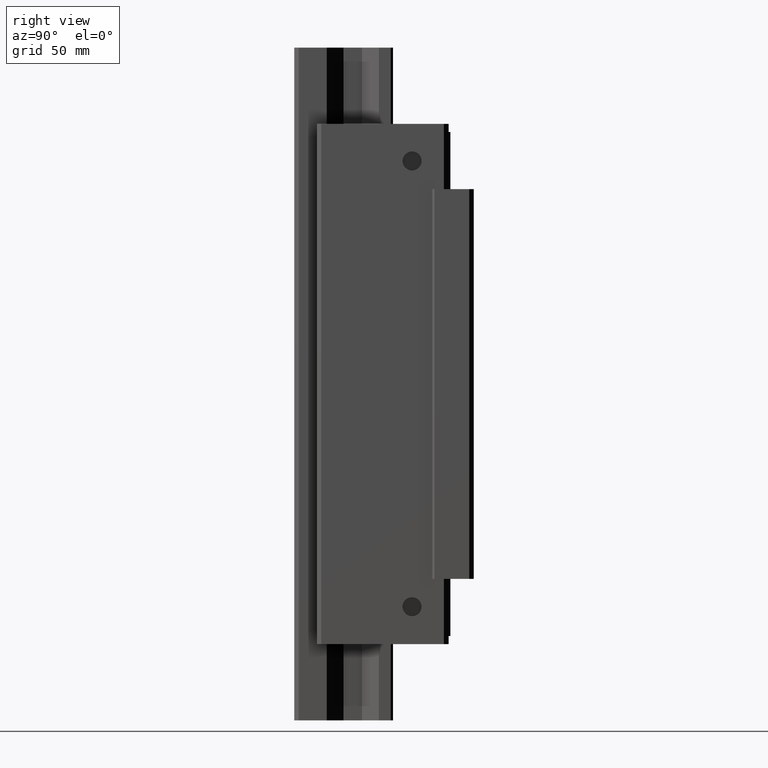
[diagram: clean part render]
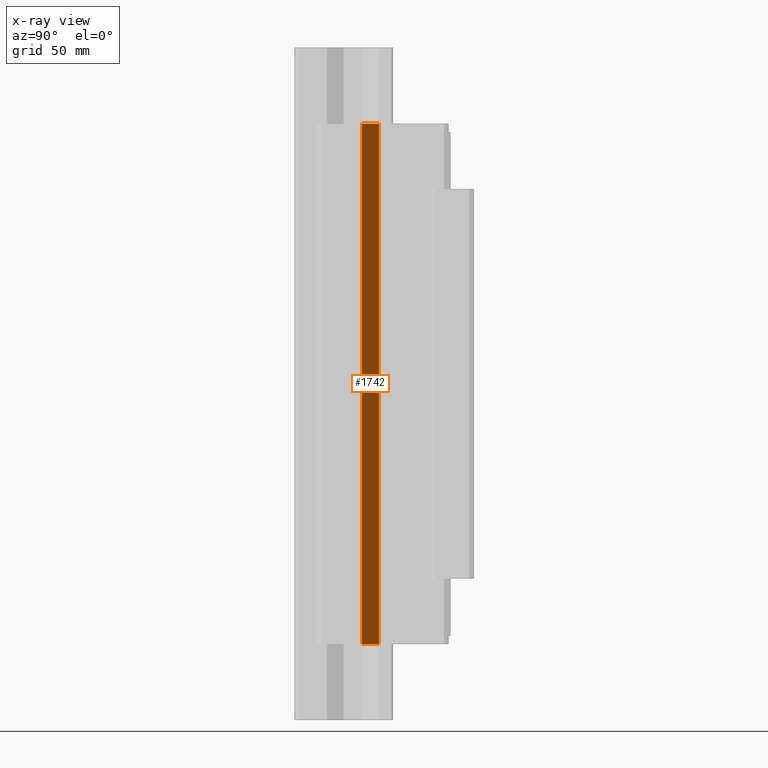
[diagram: x-ray — body ghosted, one internal face saturated and labeled with its STEP entity id]
A machine part, right view, then the same camera in x-ray: the body is ghosted and one INTERNAL B-rep face — a face not visible from any outside direction — is saturated and labeled: STEP entity #1742.
In plain terms, the highlighted planar face has unit normal (0.7071, 0.7071, 0).
Its self-contained STEP definition (entity closure, byte-faithful):
#5=DIRECTION('',(1.119411077243E-14,-2.725788943218E-14,-1.E0));
#6=VECTOR('',#5,2.32E2);
#7=CARTESIAN_POINT('',(-1.900000707402E1,-3.979679733303E1,1.16E2));
#8=LINE('',#7,#6);
#17=DIRECTION('',(0.E0,-1.892738839223E-14,-1.E0));
#18=VECTOR('',#17,2.32E2);
#19=CARTESIAN_POINT('',(-2.650000707401E1,-3.229679732943E1,1.16E2));
#20=LINE('',#19,#18);
#453=DIRECTION('',(7.071067810168E-1,-7.071067813563E-1,0.E0));
#454=VECTOR('',#453,1.060660172034E1);
#455=CARTESIAN_POINT('',(-2.650000707401E1,-3.229679732943E1,1.16E2));
#456=LINE('',#455,#454);
#511=DIRECTION('',(-7.071067810169E-1,7.071067813562E-1,0.E0));
#512=VECTOR('',#511,1.060660172034E1);
#513=CARTESIAN_POINT('',(-1.900000707401E1,-3.979679733304E1,-1.16E2));
#514=LINE('',#513,#512);
#1305=CARTESIAN_POINT('',(-1.900000707402E1,-3.979679733303E1,1.16E2));
#1306=CARTESIAN_POINT('',(-1.900000707401E1,-3.979679733304E1,-1.16E2));
#1307=VERTEX_POINT('',#1305);
#1308=VERTEX_POINT('',#1306);
#1309=CARTESIAN_POINT('',(-2.650000707401E1,-3.229679732943E1,1.16E2));
#1310=CARTESIAN_POINT('',(-2.650000707401E1,-3.229679732944E1,-1.16E2));
#1311=VERTEX_POINT('',#1309);
#1312=VERTEX_POINT('',#1310);
#1728=CARTESIAN_POINT('',(-1.9E1,-3.979682562909E1,-8.69E1));
#1729=DIRECTION('',(7.071067813562E-1,7.071067810169E-1,0.E0));
#1730=DIRECTION('',(-7.071067810169E-1,7.071067813562E-1,0.E0));
#1731=AXIS2_PLACEMENT_3D('',#1728,#1729,#1730);
#1732=PLANE('',#1731);
#1734=ORIENTED_EDGE('',*,*,#1733,.T.);
#1736=ORIENTED_EDGE('',*,*,#1735,.F.);
#1737=ORIENTED_EDGE('',*,*,#1718,.F.);
#1739=ORIENTED_EDGE('',*,*,#1738,.F.);
#1740=EDGE_LOOP('',(#1734,#1736,#1737,#1739));
#1741=FACE_OUTER_BOUND('',#1740,.F.);
#1742=ADVANCED_FACE('',(#1741),#1732,.T.);
#1718=EDGE_CURVE('',#1307,#1308,#8,.T.);
#1733=EDGE_CURVE('',#1311,#1312,#20,.T.);
#1735=EDGE_CURVE('',#1308,#1312,#514,.T.);
#1738=EDGE_CURVE('',#1311,#1307,#456,.T.);